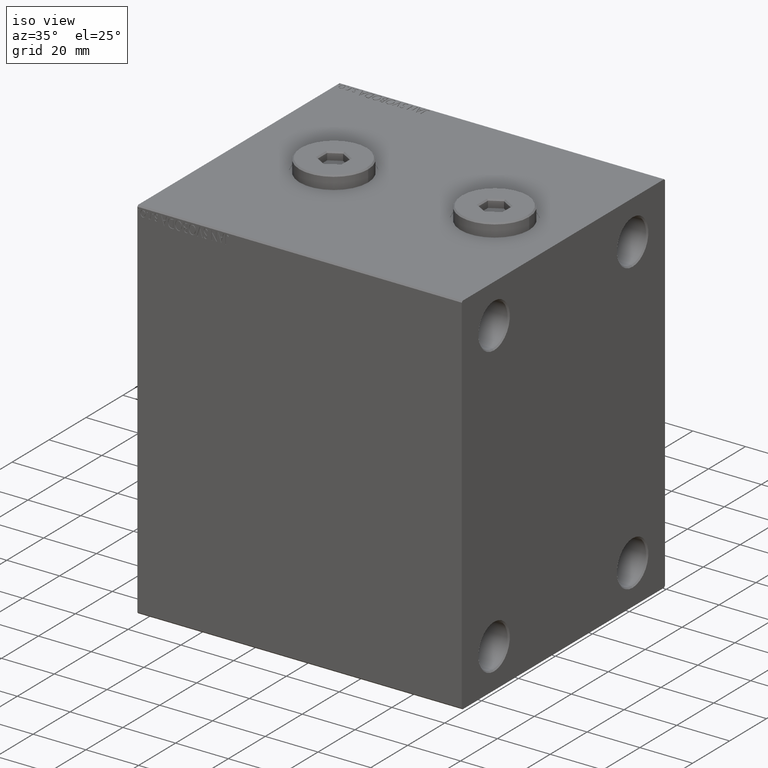
[diagram: clean part render]
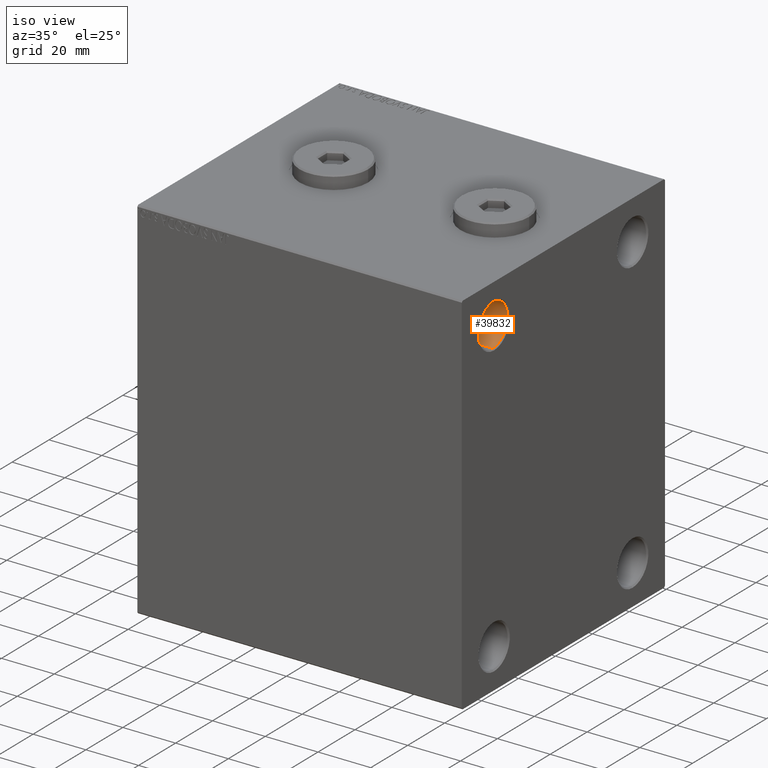
[diagram: same view with one face highlighted and labeled with its STEP entity id]
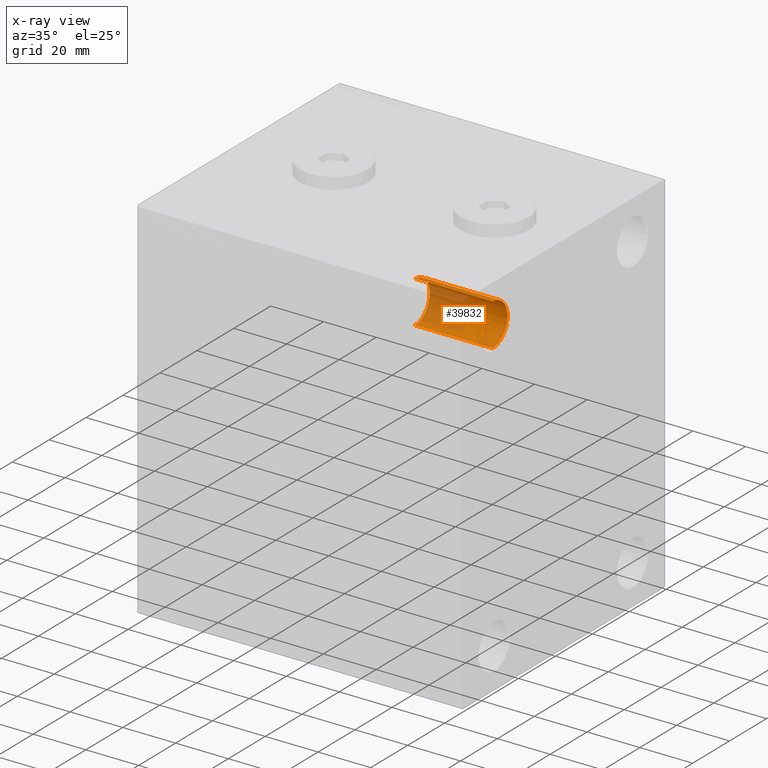
[diagram: x-ray of the same camera — body ghosted, the highlighted face saturated]
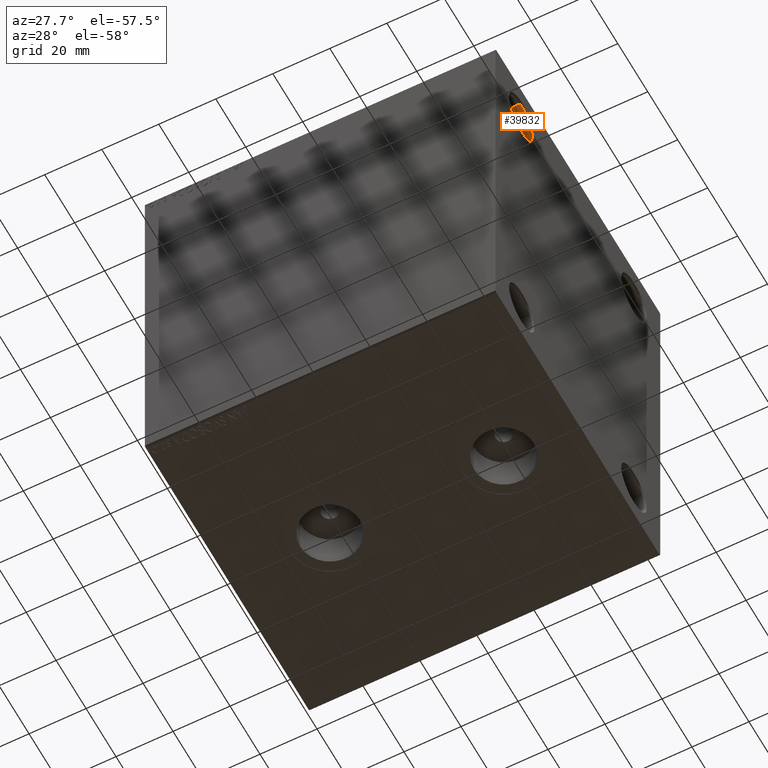
[diagram: same view with one face highlighted and labeled with its STEP entity id]
A machine part, iso view. The second image highlights one B-rep face of the part: STEP entity #39832.
The next image is the same camera in x-ray: the body ghosted, the highlighted face saturated — about 40% of this face is hidden behind the body in this view.
A second angle (auxiliary view) of the same face is appended — the face is thin or edge-on in the first view.
In plain terms, the highlighted cylindrical surface (edge-blend (fillet) strip) has radius 8 mm, axis along (1, 0, 0).
Its self-contained STEP definition (entity closure, byte-faithful):
#1605 = VERTEX_POINT ( 'NONE', #22409 ) ;
#2752 = EDGE_LOOP ( 'NONE', ( #25243, #18924, #10002, #4018 ) ) ;
#3961 = CARTESIAN_POINT ( 'NONE',  ( 93.00000000000000000, -37.49999999999999289, 63.00000000000000000 ) ) ;
#4018 = ORIENTED_EDGE ( 'NONE', *, *, #29737, .F. ) ;
#5777 = AXIS2_PLACEMENT_3D ( 'NONE', #18064, #31871, #32101 ) ;
#5946 = CARTESIAN_POINT ( 'NONE',  ( 93.00000000000000000, -37.49999999999999289, 55.00000000000000711 ) ) ;
#7972 = CIRCLE ( 'NONE', #5777, 7.999999999999992895 ) ;
#9630 = CARTESIAN_POINT ( 'NONE',  ( 122.4999999999999858, -37.49999999999999289, 63.00000000000000000 ) ) ;
#10002 = ORIENTED_EDGE ( 'NONE', *, *, #28727, .F. ) ;
#11983 = DIRECTION ( 'NONE',  ( 1.000000000000000000, -0.000000000000000000, -0.000000000000000000 ) ) ;
#12317 = VECTOR ( 'NONE', #11983, 1000.000000000000000 ) ;
#13269 = VERTEX_POINT ( 'NONE', #9630 ) ;
#13381 = EDGE_CURVE ( 'NONE', #26838, #15010, #17915, .T. ) ;
#14718 = EDGE_CURVE ( 'NONE', #15010, #1605, #28397, .T. ) ;
#15010 = VERTEX_POINT ( 'NONE', #30221 ) ;
#17915 = CIRCLE ( 'NONE', #18640, 7.999999999999992895 ) ;
#18064 = CARTESIAN_POINT ( 'NONE',  ( 122.4999999999999858, -37.49999999999999289, 55.00000000000000711 ) ) ;
#18640 = AXIS2_PLACEMENT_3D ( 'NONE', #5946, #23877, #44568 ) ;
#18924 = ORIENTED_EDGE ( 'NONE', *, *, #14718, .T. ) ;
#22409 = CARTESIAN_POINT ( 'NONE',  ( 122.4999999999999858, -37.49999999999999289, 47.00000000000001421 ) ) ;
#23738 = VECTOR ( 'NONE', #35978, 1000.000000000000000 ) ;
#23877 = DIRECTION ( 'NONE',  ( -1.000000000000000000, 0.000000000000000000, 0.000000000000000000 ) ) ;
#25243 = ORIENTED_EDGE ( 'NONE', *, *, #13381, .T. ) ;
#26229 = LINE ( 'NONE', #32227, #12317 ) ;
#26838 = VERTEX_POINT ( 'NONE', #3961 ) ;
#28397 = LINE ( 'NONE', #38970, #23738 ) ;
#28727 = EDGE_CURVE ( 'NONE', #13269, #1605, #7972, .T. ) ;
#29737 = EDGE_CURVE ( 'NONE', #26838, #13269, #26229, .T. ) ;
#30221 = CARTESIAN_POINT ( 'NONE',  ( 93.00000000000000000, -37.49999999999999289, 47.00000000000001421 ) ) ;
#30603 = CYLINDRICAL_SURFACE ( 'NONE', #37200, 7.999999999999992895 ) ;
#31871 = DIRECTION ( 'NONE',  ( -1.000000000000000000, 0.000000000000000000, 0.000000000000000000 ) ) ;
#32101 = DIRECTION ( 'NONE',  ( 0.000000000000000000, 0.000000000000000000, -1.000000000000000000 ) ) ;
#32227 = CARTESIAN_POINT ( 'NONE',  ( 123.0000000000000000, -37.49999999999999289, 63.00000000000000000 ) ) ;
#33376 = FACE_OUTER_BOUND ( 'NONE', #2752, .T. ) ;
#33833 = CARTESIAN_POINT ( 'NONE',  ( 123.0000000000000000, -37.49999999999999289, 55.00000000000000711 ) ) ;
#35978 = DIRECTION ( 'NONE',  ( 1.000000000000000000, -0.000000000000000000, -0.000000000000000000 ) ) ;
#36822 = DIRECTION ( 'NONE',  ( 0.000000000000000000, 0.000000000000000000, 1.000000000000000000 ) ) ;
#37200 = AXIS2_PLACEMENT_3D ( 'NONE', #33833, #40953, #36822 ) ;
#38970 = CARTESIAN_POINT ( 'NONE',  ( 123.0000000000000000, -37.49999999999999289, 47.00000000000001421 ) ) ;
#39832 = ADVANCED_FACE ( 'NONE', ( #33376 ), #30603, .F. ) ;
#40953 = DIRECTION ( 'NONE',  ( 1.000000000000000000, -0.000000000000000000, -0.000000000000000000 ) ) ;
#44568 = DIRECTION ( 'NONE',  ( 0.000000000000000000, 0.000000000000000000, 1.000000000000000000 ) ) ;